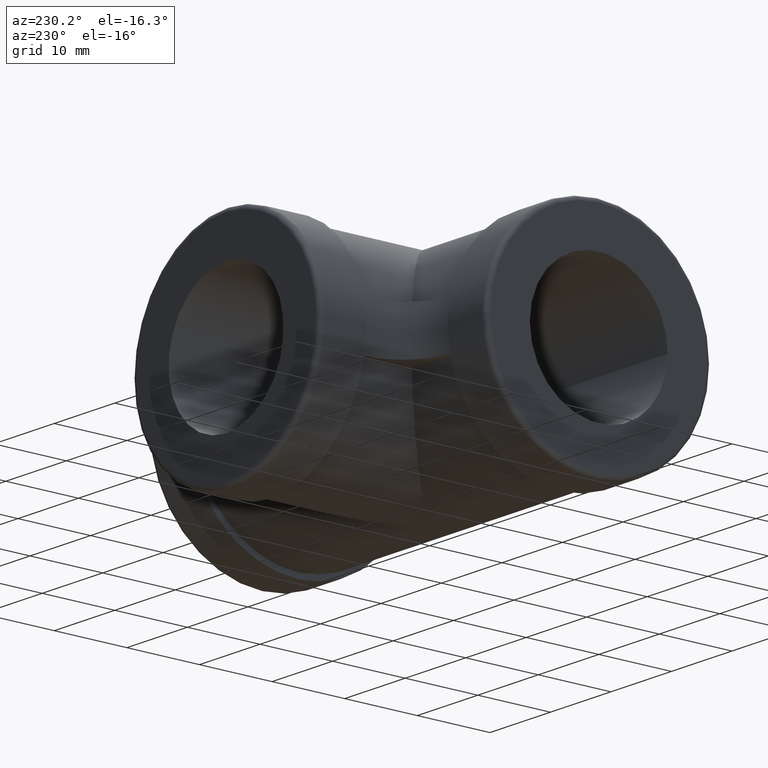
[diagram: clean part render]
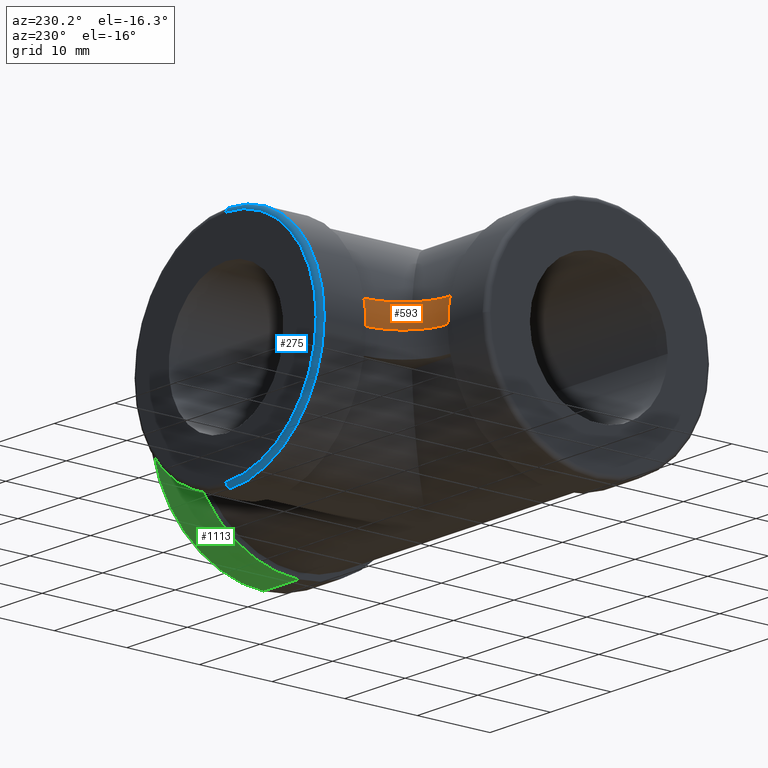
[diagram: same view with three faces highlighted in distinct colors, each labeled with its STEP entity id]
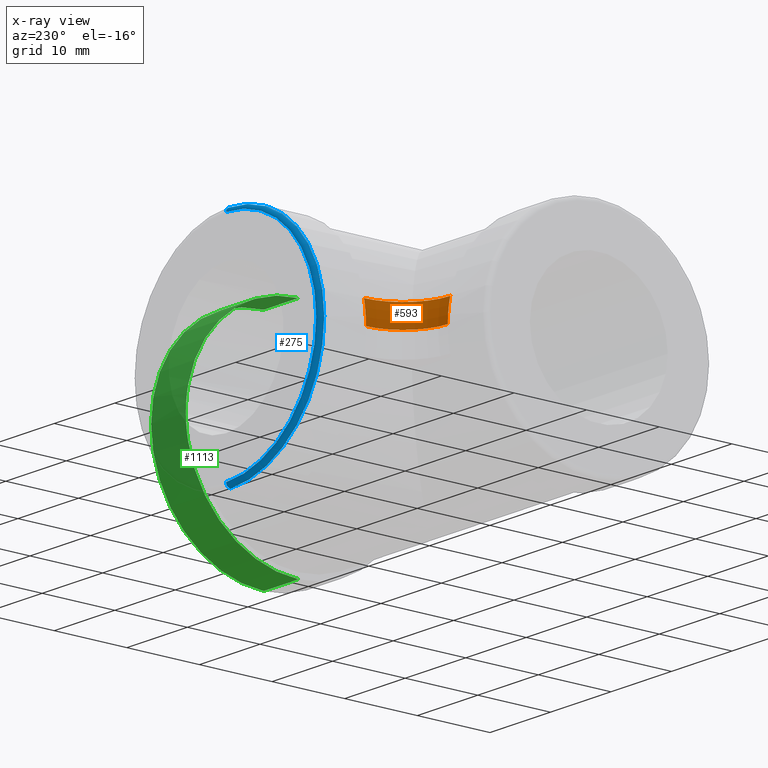
[diagram: x-ray of the same camera — body ghosted, the three highlighted faces saturated]
A machine part, auxiliary view with three faces highlighted in distinct colors.
The next image is the same camera in x-ray (body ghosted, the three faces saturated) — at least one of them is partly hidden behind the body in this view.
Their STEP definitions:

[orange] entity #593 — the highlighted toroidal blend (fillet) surface has major radius 21.65 mm and minor (blend) radius 15.5 mm.
#60 = VERTEX_POINT ( 'NONE', #668 ) ;
#67 = CIRCLE ( 'NONE', #846, 6.478666011190767904 ) ;
#78 = EDGE_LOOP ( 'NONE', ( #243, #688, #1260, #630 ) ) ;
#84 = CARTESIAN_POINT ( 'NONE',  ( -21.65000000000005898, 21.64999999999998082, 3.175000000000002043 ) ) ;
#110 = CARTESIAN_POINT ( 'NONE',  ( -21.65000000000005898, 21.64999999999998082, 1.898202538678397557E-15 ) ) ;
#123 = CARTESIAN_POINT ( 'NONE',  ( -21.65000000000005542, 15.17133398880921291, 3.175000000000002043 ) ) ;
#216 = TOROIDAL_SURFACE ( 'NONE', #698, 21.65000000000005898, 15.50000000000000000 ) ;
#243 = ORIENTED_EDGE ( 'NONE', *, *, #313, .T. ) ;
#313 = EDGE_CURVE ( 'NONE', #60, #1216, #602, .T. ) ;
#345 = VERTEX_POINT ( 'NONE', #427 ) ;
#361 = AXIS2_PLACEMENT_3D ( 'NONE', #411, #903, #1214 ) ;
#390 = AXIS2_PLACEMENT_3D ( 'NONE', #713, #1097, #1019 ) ;
#394 = DIRECTION ( 'NONE',  ( -1.000000000000000000, 0.000000000000000000, 0.000000000000000000 ) ) ;
#411 = CARTESIAN_POINT ( 'NONE',  ( -21.65000000000000213, 2.267717129578615398E-13, 0.000000000000000000 ) ) ;
#427 = CARTESIAN_POINT ( 'NONE',  ( -21.64999999999983871, 15.50000000000022737, 1.898202538678416096E-15 ) ) ;
#585 = DIRECTION ( 'NONE',  ( -0.000000000000000000, -0.000000000000000000, -1.000000000000000000 ) ) ;
#593 = ADVANCED_FACE ( 'NONE', ( #1284 ), #216, .T. ) ;
#602 = CIRCLE ( 'NONE', #390, 15.50000000000000000 ) ;
#605 = DIRECTION ( 'NONE',  ( -0.000000000000000000, -0.000000000000000000, -1.000000000000000000 ) ) ;
#620 = EDGE_CURVE ( 'NONE', #60, #737, #67, .T. ) ;
#630 = ORIENTED_EDGE ( 'NONE', *, *, #620, .F. ) ;
#668 = CARTESIAN_POINT ( 'NONE',  ( -15.17133398880928929, 21.65000000000000924, 3.175000000000002043 ) ) ;
#671 = DIRECTION ( 'NONE',  ( -0.000000000000000000, -0.000000000000000000, -1.000000000000000000 ) ) ;
#688 = ORIENTED_EDGE ( 'NONE', *, *, #778, .T. ) ;
#698 = AXIS2_PLACEMENT_3D ( 'NONE', #1201, #585, #893 ) ;
#713 = CARTESIAN_POINT ( 'NONE',  ( -1.474523914051342531E-15, 21.65000000000011227, 0.000000000000000000 ) ) ;
#737 = VERTEX_POINT ( 'NONE', #123 ) ;
#778 = EDGE_CURVE ( 'NONE', #1216, #345, #887, .T. ) ;
#810 = CARTESIAN_POINT ( 'NONE',  ( -15.50000000000000355, 21.65000000000000568, 1.898202538678397952E-15 ) ) ;
#818 = DIRECTION ( 'NONE',  ( -1.000000000000000000, 0.000000000000000000, 0.000000000000000000 ) ) ;
#824 = EDGE_CURVE ( 'NONE', #737, #345, #1062, .T. ) ;
#846 = AXIS2_PLACEMENT_3D ( 'NONE', #84, #671, #394 ) ;
#887 = CIRCLE ( 'NONE', #930, 6.150000000000058087 ) ;
#893 = DIRECTION ( 'NONE',  ( -1.000000000000000000, 0.000000000000000000, 0.000000000000000000 ) ) ;
#903 = DIRECTION ( 'NONE',  ( -1.000000000000000000, 1.047444401652940007E-14, 0.000000000000000000 ) ) ;
#930 = AXIS2_PLACEMENT_3D ( 'NONE', #110, #605, #818 ) ;
#1019 = DIRECTION ( 'NONE',  ( 1.000000000000000000, 6.938893903907228378E-15, 0.000000000000000000 ) ) ;
#1062 = CIRCLE ( 'NONE', #361, 15.50000000000000000 ) ;
#1097 = DIRECTION ( 'NONE',  ( 6.982964699952515422E-15, -1.000000000000000000, -0.000000000000000000 ) ) ;
#1201 = CARTESIAN_POINT ( 'NONE',  ( -21.65000000000005898, 21.64999999999998082, 0.000000000000000000 ) ) ;
#1214 = DIRECTION ( 'NONE',  ( 0.000000000000000000, 0.000000000000000000, 1.000000000000000000 ) ) ;
#1216 = VERTEX_POINT ( 'NONE', #810 ) ;
#1260 = ORIENTED_EDGE ( 'NONE', *, *, #824, .F. ) ;
#1284 = FACE_OUTER_BOUND ( 'NONE', #78, .T. ) ;

[blue] entity #275 — the highlighted toroidal blend (fillet) surface has major radius 14.8952 mm and minor (blend) radius 0.6048 mm.
#14 = AXIS2_PLACEMENT_3D ( 'NONE', #494, #949, #943 ) ;
#29 = CIRCLE ( 'NONE', #952, 15.50000000000000000 ) ;
#35 = CARTESIAN_POINT ( 'NONE',  ( 0.000000000000000000, 27.39523809523809916, 15.50000000000000000 ) ) ;
#57 = AXIS2_PLACEMENT_3D ( 'NONE', #383, #792, #784 ) ;
#92 = VERTEX_POINT ( 'NONE', #165 ) ;
#99 = AXIS2_PLACEMENT_3D ( 'NONE', #708, #207, #213 ) ;
#118 = EDGE_LOOP ( 'NONE', ( #967, #460, #1253, #650 ) ) ;
#125 = EDGE_CURVE ( 'NONE', #550, #146, #389, .T. ) ;
#146 = VERTEX_POINT ( 'NONE', #463 ) ;
#165 = CARTESIAN_POINT ( 'NONE',  ( 1.898202538678397557E-15, 27.39523809523809916, -15.50000000000000000 ) ) ;
#207 = DIRECTION ( 'NONE',  ( 1.000000000000000000, -0.000000000000000000, 1.224646799147353207E-16 ) ) ;
#213 = DIRECTION ( 'NONE',  ( 1.224646799147352961E-16, 0.000000000000000000, -1.000000000000000000 ) ) ;
#275 = ADVANCED_FACE ( 'NONE', ( #516 ), #894, .T. ) ;
#280 = CARTESIAN_POINT ( 'NONE',  ( 0.000000000000000000, 27.39523809523809916, 14.89523809523809561 ) ) ;
#288 = EDGE_CURVE ( 'NONE', #92, #368, #791, .T. ) ;
#368 = VERTEX_POINT ( 'NONE', #522 ) ;
#383 = CARTESIAN_POINT ( 'NONE',  ( 0.000000000000000000, 27.39523809523809916, 0.000000000000000000 ) ) ;
#389 = CIRCLE ( 'NONE', #535, 0.6047619047619048338 ) ;
#460 = ORIENTED_EDGE ( 'NONE', *, *, #854, .F. ) ;
#463 = CARTESIAN_POINT ( 'NONE',  ( 0.000000000000000000, 28.00000000000000000, 14.89523809523809561 ) ) ;
#494 = CARTESIAN_POINT ( 'NONE',  ( 0.000000000000000000, 28.00000000000000000, 0.000000000000000000 ) ) ;
#516 = FACE_OUTER_BOUND ( 'NONE', #118, .T. ) ;
#522 = CARTESIAN_POINT ( 'NONE',  ( 1.861171552132751273E-15, 28.00000000000000000, -14.89523809523809561 ) ) ;
#532 = CIRCLE ( 'NONE', #14, 14.89523809523809561 ) ;
#535 = AXIS2_PLACEMENT_3D ( 'NONE', #280, #964, #1172 ) ;
#538 = DIRECTION ( 'NONE',  ( -0.000000000000000000, -1.000000000000000000, -0.000000000000000000 ) ) ;
#550 = VERTEX_POINT ( 'NONE', #35 ) ;
#650 = ORIENTED_EDGE ( 'NONE', *, *, #1245, .F. ) ;
#708 = CARTESIAN_POINT ( 'NONE',  ( 1.824140565587105383E-15, 27.39523809523809916, -14.89523809523809561 ) ) ;
#784 = DIRECTION ( 'NONE',  ( 0.000000000000000000, 0.000000000000000000, 1.000000000000000000 ) ) ;
#791 = CIRCLE ( 'NONE', #99, 0.6047619047619048338 ) ;
#792 = DIRECTION ( 'NONE',  ( 0.000000000000000000, 1.000000000000000000, 0.000000000000000000 ) ) ;
#854 = EDGE_CURVE ( 'NONE', #550, #92, #29, .T. ) ;
#894 = TOROIDAL_SURFACE ( 'NONE', #57, 14.89523809523809561, 0.6047619047619047228 ) ;
#943 = DIRECTION ( 'NONE',  ( 0.000000000000000000, 0.000000000000000000, 1.000000000000000000 ) ) ;
#949 = DIRECTION ( 'NONE',  ( 0.000000000000000000, 1.000000000000000000, 0.000000000000000000 ) ) ;
#952 = AXIS2_PLACEMENT_3D ( 'NONE', #1153, #538, #1063 ) ;
#964 = DIRECTION ( 'NONE',  ( -1.000000000000000000, 0.000000000000000000, 0.000000000000000000 ) ) ;
#967 = ORIENTED_EDGE ( 'NONE', *, *, #288, .F. ) ;
#1063 = DIRECTION ( 'NONE',  ( 0.000000000000000000, 0.000000000000000000, 1.000000000000000000 ) ) ;
#1153 = CARTESIAN_POINT ( 'NONE',  ( 0.000000000000000000, 27.39523809523809916, 0.000000000000000000 ) ) ;
#1172 = DIRECTION ( 'NONE',  ( 0.000000000000000000, 0.000000000000000000, 1.000000000000000000 ) ) ;
#1245 = EDGE_CURVE ( 'NONE', #368, #146, #532, .T. ) ;
#1253 = ORIENTED_EDGE ( 'NONE', *, *, #125, .T. ) ;

[green] entity #1113 — the highlighted cylindrical surface (partial cylindrical patch) has radius 15.5 mm, axis along (1, -0, 0).
#4 = CARTESIAN_POINT ( 'NONE',  ( 21.65000000000005542, 15.17133398880921291, 3.174999999999998934 ) ) ;
#8 = CARTESIAN_POINT ( 'NONE',  ( 21.65000000000000213, -7.559057098595384661E-14, 0.000000000000000000 ) ) ;
#12 = AXIS2_PLACEMENT_3D ( 'NONE', #531, #145, #945 ) ;
#45 = VERTEX_POINT ( 'NONE', #1091 ) ;
#58 = CARTESIAN_POINT ( 'NONE',  ( 21.65000000000005542, 15.17133398880921291, -3.174999999999999378 ) ) ;
#66 = DIRECTION ( 'NONE',  ( 1.000000000000000000, -3.491481338843133355E-15, 0.000000000000000000 ) ) ;
#76 = CARTESIAN_POINT ( 'NONE',  ( 21.65000000000000213, -7.559057098595384661E-14, 0.000000000000000000 ) ) ;
#89 = EDGE_CURVE ( 'NONE', #286, #128, #451, .T. ) ;
#116 = ORIENTED_EDGE ( 'NONE', *, *, #502, .T. ) ;
#120 = DIRECTION ( 'NONE',  ( 0.000000000000000000, 0.000000000000000000, 1.000000000000000000 ) ) ;
#126 = EDGE_CURVE ( 'NONE', #897, #235, #1090, .T. ) ;
#128 = VERTEX_POINT ( 'NONE', #58 ) ;
#133 = LINE ( 'NONE', #346, #1277 ) ;
#145 = DIRECTION ( 'NONE',  ( -1.000000000000000000, 3.491483361109382066E-15, 0.000000000000000000 ) ) ;
#169 = DIRECTION ( 'NONE',  ( 1.000000000000000000, -3.491481338843133355E-15, 0.000000000000000000 ) ) ;
#179 = DIRECTION ( 'NONE',  ( 3.581364595565021073E-15, 1.000000000000000000, 0.000000000000000000 ) ) ;
#214 = CARTESIAN_POINT ( 'NONE',  ( 21.65000000000005898, 15.49999999999992362, -1.898202538678397557E-15 ) ) ;
#235 = VERTEX_POINT ( 'NONE', #909 ) ;
#256 = ORIENTED_EDGE ( 'NONE', *, *, #360, .T. ) ;
#259 = CARTESIAN_POINT ( 'NONE',  ( 21.65000000000000213, -7.559057098595384661E-14, 0.000000000000000000 ) ) ;
#260 = CIRCLE ( 'NONE', #12, 15.50000000000000000 ) ;
#286 = VERTEX_POINT ( 'NONE', #302 ) ;
#290 = DIRECTION ( 'NONE',  ( 0.000000000000000000, 0.000000000000000000, 1.000000000000000000 ) ) ;
#302 = CARTESIAN_POINT ( 'NONE',  ( 21.65000000000000213, -8.751846932299938179E-14, -15.50000000000000000 ) ) ;
#322 = CARTESIAN_POINT ( 'NONE',  ( 27.39523809523809916, -9.564996258268831671E-14, 0.000000000000000000 ) ) ;
#341 = AXIS2_PLACEMENT_3D ( 'NONE', #673, #866, #179 ) ;
#346 = CARTESIAN_POINT ( 'NONE',  ( 21.65000000000000213, -7.559057098595384661E-14, 15.50000000000000000 ) ) ;
#360 = EDGE_CURVE ( 'NONE', #814, #45, #1060, .T. ) ;
#371 = DIRECTION ( 'NONE',  ( 1.000000000000000000, -3.491481338843133355E-15, 0.000000000000000000 ) ) ;
#408 = EDGE_CURVE ( 'NONE', #1154, #897, #657, .T. ) ;
#414 = DIRECTION ( 'NONE',  ( -1.000000000000000000, 3.491481338843133355E-15, -0.000000000000000000 ) ) ;
#443 = AXIS2_PLACEMENT_3D ( 'NONE', #322, #414, #1068 ) ;
#451 = CIRCLE ( 'NONE', #937, 15.50000000000000000 ) ;
#489 = AXIS2_PLACEMENT_3D ( 'NONE', #259, #169, #120 ) ;
#502 = EDGE_CURVE ( 'NONE', #45, #1154, #133, .T. ) ;
#531 = CARTESIAN_POINT ( 'NONE',  ( 21.65000000000000213, -7.559057098595384661E-14, 0.000000000000000000 ) ) ;
#558 = DIRECTION ( 'NONE',  ( 0.000000000000000000, 0.000000000000000000, 1.000000000000000000 ) ) ;
#604 = EDGE_LOOP ( 'NONE', ( #925, #1309, #1287, #928, #256, #116, #829, #1139 ) ) ;
#652 = EDGE_CURVE ( 'NONE', #286, #235, #1301, .T. ) ;
#657 = CIRCLE ( 'NONE', #443, 15.50000000000000000 ) ;
#673 = CARTESIAN_POINT ( 'NONE',  ( 27.39523809523809916, -9.564996258268831671E-14, 0.000000000000000000 ) ) ;
#693 = CYLINDRICAL_SURFACE ( 'NONE', #996, 15.50000000000000000 ) ;
#709 = FACE_OUTER_BOUND ( 'NONE', #604, .T. ) ;
#814 = VERTEX_POINT ( 'NONE', #4 ) ;
#829 = ORIENTED_EDGE ( 'NONE', *, *, #408, .T. ) ;
#866 = DIRECTION ( 'NONE',  ( -1.000000000000000000, 3.491481338843133355E-15, -0.000000000000000000 ) ) ;
#867 = CARTESIAN_POINT ( 'NONE',  ( 21.65000000000000213, -7.559057098595384661E-14, 0.000000000000000000 ) ) ;
#897 = VERTEX_POINT ( 'NONE', #1164 ) ;
#909 = CARTESIAN_POINT ( 'NONE',  ( 27.39523809523809916, -8.751846932299938179E-14, -15.50000000000000000 ) ) ;
#925 = ORIENTED_EDGE ( 'NONE', *, *, #652, .F. ) ;
#928 = ORIENTED_EDGE ( 'NONE', *, *, #934, .F. ) ;
#934 = EDGE_CURVE ( 'NONE', #814, #1242, #260, .T. ) ;
#937 = AXIS2_PLACEMENT_3D ( 'NONE', #76, #371, #558 ) ;
#945 = DIRECTION ( 'NONE',  ( -3.581364595565021073E-15, -1.000000000000000000, 0.000000000000000000 ) ) ;
#953 = CIRCLE ( 'NONE', #1064, 15.50000000000000000 ) ;
#968 = CARTESIAN_POINT ( 'NONE',  ( 21.65000000000000213, -7.748877352463224140E-14, -15.50000000000000000 ) ) ;
#996 = AXIS2_PLACEMENT_3D ( 'NONE', #8, #1103, #290 ) ;
#999 = CARTESIAN_POINT ( 'NONE',  ( 27.39523809523809916, -8.562026678432098699E-14, 15.50000000000000000 ) ) ;
#1060 = CIRCLE ( 'NONE', #489, 15.50000000000000000 ) ;
#1064 = AXIS2_PLACEMENT_3D ( 'NONE', #867, #1079, #1186 ) ;
#1066 = DIRECTION ( 'NONE',  ( 1.000000000000000000, -3.491481338843133355E-15, 0.000000000000000000 ) ) ;
#1068 = DIRECTION ( 'NONE',  ( 3.581364595565021073E-15, 1.000000000000000000, 8.881784197001252323E-16 ) ) ;
#1078 = EDGE_CURVE ( 'NONE', #1242, #128, #953, .T. ) ;
#1079 = DIRECTION ( 'NONE',  ( -1.000000000000000000, 3.491483361109382066E-15, 0.000000000000000000 ) ) ;
#1090 = CIRCLE ( 'NONE', #341, 15.50000000000000000 ) ;
#1091 = CARTESIAN_POINT ( 'NONE',  ( 21.65000000000000213, -8.562026678432089864E-14, 15.50000000000000000 ) ) ;
#1103 = DIRECTION ( 'NONE',  ( 1.000000000000000000, -3.491481338843133355E-15, 0.000000000000000000 ) ) ;
#1105 = VECTOR ( 'NONE', #66, 1000.000000000000000 ) ;
#1113 = ADVANCED_FACE ( 'NONE', ( #709 ), #693, .T. ) ;
#1139 = ORIENTED_EDGE ( 'NONE', *, *, #126, .T. ) ;
#1154 = VERTEX_POINT ( 'NONE', #999 ) ;
#1164 = CARTESIAN_POINT ( 'NONE',  ( 27.39523809523815245, 15.49999999999990408, 0.000000000000000000 ) ) ;
#1186 = DIRECTION ( 'NONE',  ( -3.581364595565021073E-15, -1.000000000000000000, 0.000000000000000000 ) ) ;
#1242 = VERTEX_POINT ( 'NONE', #214 ) ;
#1277 = VECTOR ( 'NONE', #1066, 1000.000000000000000 ) ;
#1287 = ORIENTED_EDGE ( 'NONE', *, *, #1078, .F. ) ;
#1301 = LINE ( 'NONE', #968, #1105 ) ;
#1309 = ORIENTED_EDGE ( 'NONE', *, *, #89, .T. ) ;